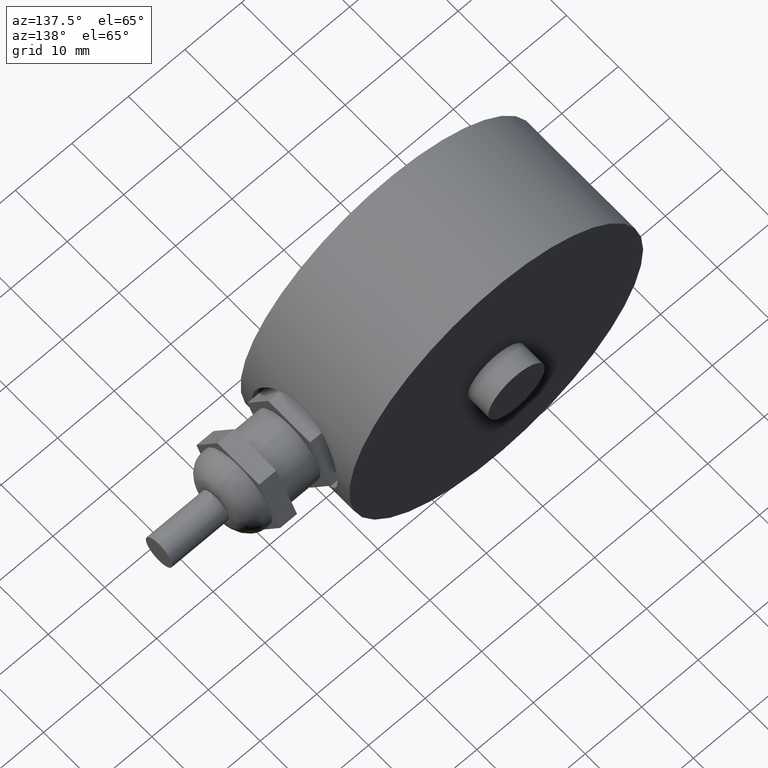
[diagram: clean part render]
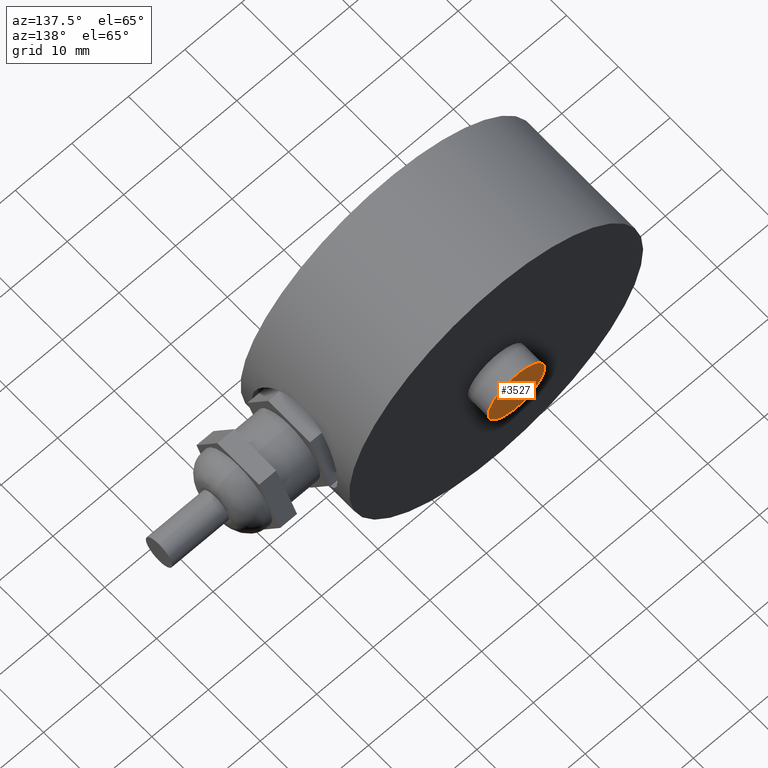
[diagram: same view with one face highlighted and labeled with its STEP entity id]
A machine part, auxiliary view. The second image highlights one B-rep face of the part: STEP entity #3527.
In plain terms, the highlighted spherical surface has radius 150 mm.
Its self-contained STEP definition (entity closure, byte-faithful):
#15=SPHERICAL_SURFACE('',#3786,150.);
#559=FACE_OUTER_BOUND('',#778,.T.);
#778=EDGE_LOOP('',(#3112,#3113));
#1238=CIRCLE('',#3787,5.00000000000001);
#1239=CIRCLE('',#3788,5.00000000000001);
#1566=VERTEX_POINT('',#14002);
#1567=VERTEX_POINT('',#14003);
#2089=EDGE_CURVE('',#1566,#1567,#1238,.T.);
#2090=EDGE_CURVE('',#1567,#1566,#1239,.T.);
#3112=ORIENTED_EDGE('',*,*,#2089,.F.);
#3113=ORIENTED_EDGE('',*,*,#2090,.F.);
#3527=ADVANCED_FACE('',(#559),#15,.T.);
#3786=AXIS2_PLACEMENT_3D('',#14001,#4481,#4482);
#3787=AXIS2_PLACEMENT_3D('',#14004,#4483,#4484);
#3788=AXIS2_PLACEMENT_3D('',#14005,#4485,#4486);
#4481=DIRECTION('center_axis',(6.12323399573676E-17,0.,1.));
#4482=DIRECTION('ref_axis',(1.,0.,0.));
#4483=DIRECTION('center_axis',(0.,-1.,0.));
#4484=DIRECTION('ref_axis',(1.,0.,0.));
#4485=DIRECTION('center_axis',(0.,-1.,0.));
#4486=DIRECTION('ref_axis',(1.,0.,0.));
#14001=CARTESIAN_POINT('Origin',(5.36395298026541E-14,-125.,0.));
#14002=CARTESIAN_POINT('',(5.00000000000001,24.9166435056495,0.));
#14003=CARTESIAN_POINT('',(-5.,24.9166435056495,-6.12323399573677E-16));
#14004=CARTESIAN_POINT('Origin',(0.,24.9166435056495,0.));
#14005=CARTESIAN_POINT('Origin',(0.,24.9166435056495,0.));